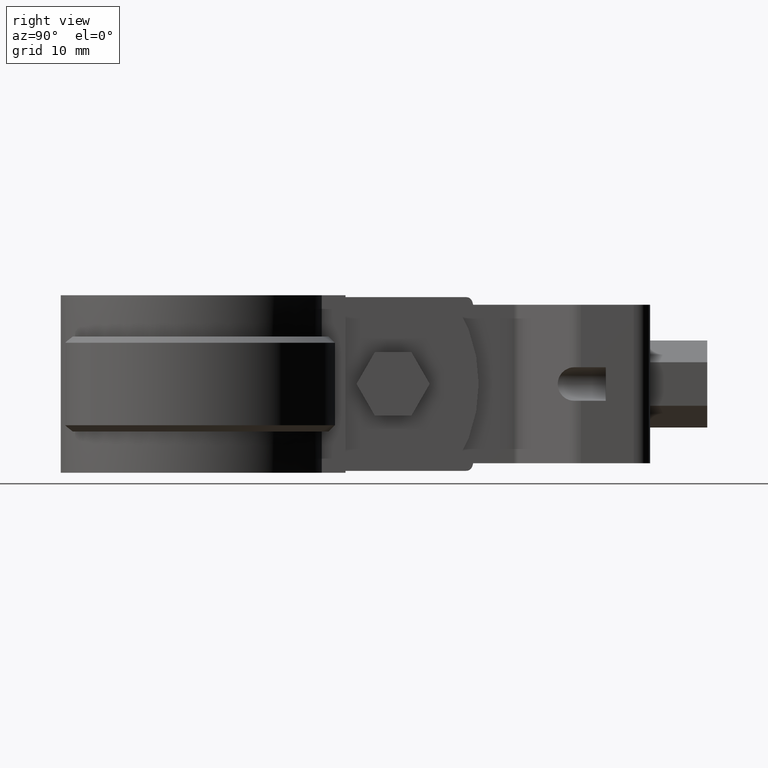
[diagram: clean part render]
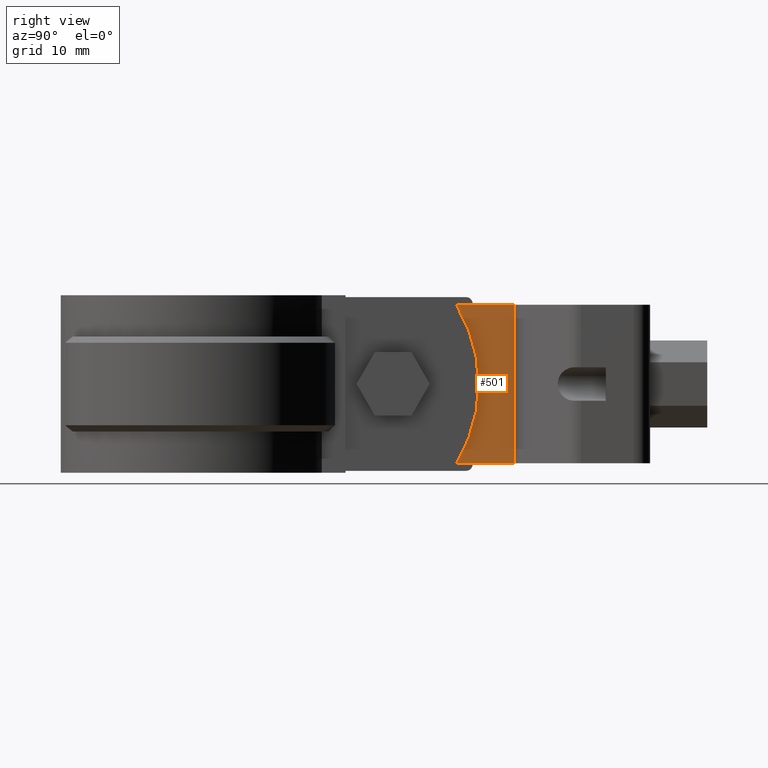
[diagram: same view with one face highlighted and labeled with its STEP entity id]
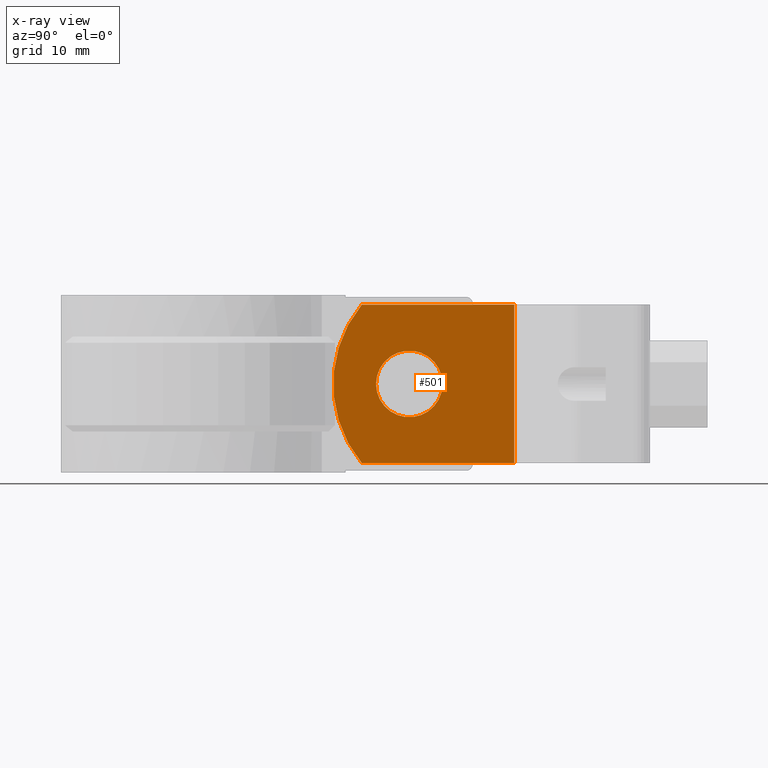
[diagram: x-ray of the same camera — body ghosted, the highlighted face saturated]
A machine part, right view. The second image highlights one B-rep face of the part: STEP entity #501.
The next image is the same camera in x-ray: the body ghosted, the highlighted face saturated — about 0% of this face is hidden behind the body in this view.
In plain terms, the highlighted planar face has unit normal (1, -0, -0).
Its self-contained STEP definition (entity closure, byte-faithful):
#501 = ADVANCED_FACE( '', ( #982, #983 ), #984, .T. );
#982 = FACE_OUTER_BOUND( '', #2075, .T. );
#983 = FACE_BOUND( '', #2076, .T. );
#984 = PLANE( '', #2077 );
#2075 = EDGE_LOOP( '', ( #4791, #4792, #4793, #4794 ) );
#2076 = EDGE_LOOP( '', ( #4795 ) );
#2077 = AXIS2_PLACEMENT_3D( '', #4796, #4797, #4798 );
#4791 = ORIENTED_EDGE( '', *, *, #6728, .T. );
#4792 = ORIENTED_EDGE( '', *, *, #6807, .F. );
#4793 = ORIENTED_EDGE( '', *, *, #6764, .F. );
#4794 = ORIENTED_EDGE( '', *, *, #6808, .F. );
#4795 = ORIENTED_EDGE( '', *, *, #6809, .F. );
#4796 = CARTESIAN_POINT( '', ( 3.00000077868153, 50.9799703601066, -24.9999980090725 ) );
#4797 = DIRECTION( '', ( 1.00000000000000, -6.88261989343836E-009, -4.22881752823906E-010 ) );
#4798 = DIRECTION( '', ( 5.16987882845642E-026, 0.0613263260811567, -0.998117769468807 ) );
#6728 = EDGE_CURVE( '', #7902, #7900, #7903, .F. );
#6764 = EDGE_CURVE( '', #7970, #7972, #7973, .T. );
#6807 = EDGE_CURVE( '', #7972, #7900, #8041, .F. );
#6808 = EDGE_CURVE( '', #7902, #7970, #8042, .T. );
#6809 = EDGE_CURVE( '', #8043, #8043, #8044, .T. );
#7900 = VERTEX_POINT( '', #11103 );
#7902 = VERTEX_POINT( '', #11106 );
#7903 = LINE( '', #11107, #11108 );
#7970 = VERTEX_POINT( '', #11204 );
#7972 = VERTEX_POINT( '', #11206 );
#7973 = LINE( '', #11207, #11208 );
#8041 = CIRCLE( '', #11313, 19.6111110000000 );
#8042 = LINE( '', #11314, #11315 );
#8043 = VERTEX_POINT( '', #11316 );
#8044 = CIRCLE( '', #11317, 5.25000000000000 );
#11103 = CARTESIAN_POINT( '', ( 3.00000062079725, 26.5043598035358, 1.58340988511074E-006 ) );
#11106 = CARTESIAN_POINT( '', ( 3.00000078635280, 50.5585061749679, 1.98391011942014E-006 ) );
#11107 = CARTESIAN_POINT( '', ( 3.00000078925357, 50.9799699438580, 1.99092747149576E-006 ) );
#11108 = VECTOR( '', #12973, 1000.00000000000 );
#11204 = CARTESIAN_POINT( '', ( 3.00000077578076, 50.5585065912165, -24.9999980160899 ) );
#11206 = CARTESIAN_POINT( '', ( 3.00000061022521, 26.5043602197845, -24.9999984165901 ) );
#11207 = CARTESIAN_POINT( '', ( 3.00000090548960, 69.4043601866960, -24.9999977023075 ) );
#11208 = VECTOR( '', #13036, 1000.00000000000 );
#11313 = AXIS2_PLACEMENT_3D( '', #13107, #13108, #13109 );
#11314 = CARTESIAN_POINT( '', ( 3.00000077578076, 50.5585065912165, -24.9999980160898 ) );
#11315 = VECTOR( '', #13110, 1000.00000000000 );
#11316 = CARTESIAN_POINT( '', ( 3.00000070326463, 39.2543599785718, -12.4999982917155 ) );
#11317 = AXIS2_PLACEMENT_3D( '', #13111, #13112, #13113 );
#12973 = DIRECTION( '', ( 6.88261990047932E-009, 1.00000000000000, 1.66499459745878E-008 ) );
#13036 = DIRECTION( '', ( -6.88261990047932E-009, -1.00000000000000, -1.66499459745878E-008 ) );
#13107 = CARTESIAN_POINT( '', ( 3.00000071951526, 41.6154709785719, -12.4999981649909 ) );
#13108 = DIRECTION( '', ( 1.00000000000000, -6.88261989343836E-009, -4.22881752823906E-010 ) );
#13109 = DIRECTION( '', ( 6.88261989343836E-009, 1.00000000000000, 0.000000000000000 ) );
#13110 = DIRECTION( '', ( -4.22881638228656E-010, 1.66499460372352E-008, -1.00000000000000 ) );
#13111 = CARTESIAN_POINT( '', ( 3.00000066713088, 34.0043599785718, -12.4999982917155 ) );
#13112 = DIRECTION( '', ( 1.00000000000000, -6.88261989343836E-009, -4.22881752823906E-010 ) );
#13113 = DIRECTION( '', ( 6.88261989343836E-009, 1.00000000000000, 0.000000000000000 ) );